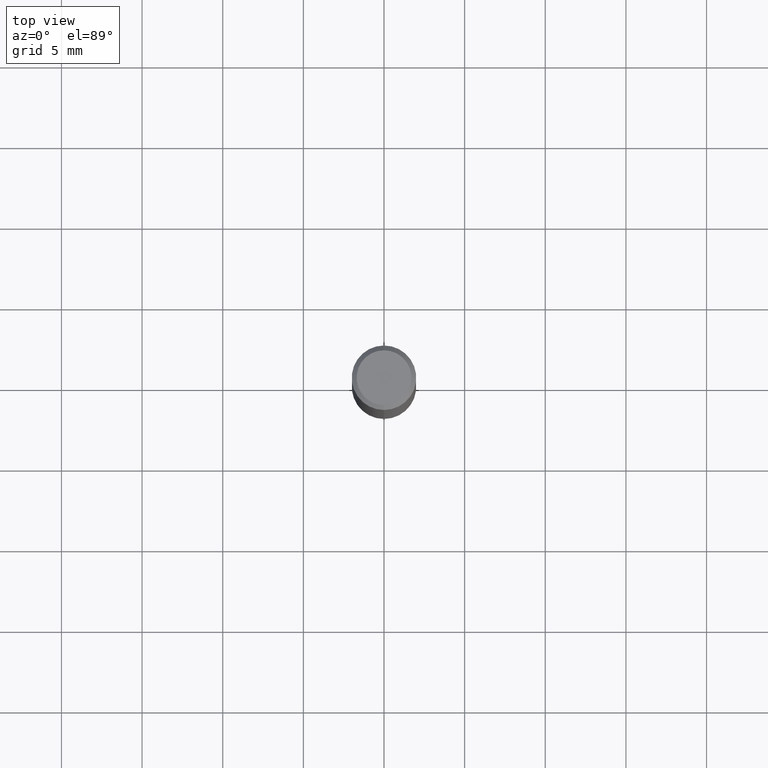
[diagram: clean part render]
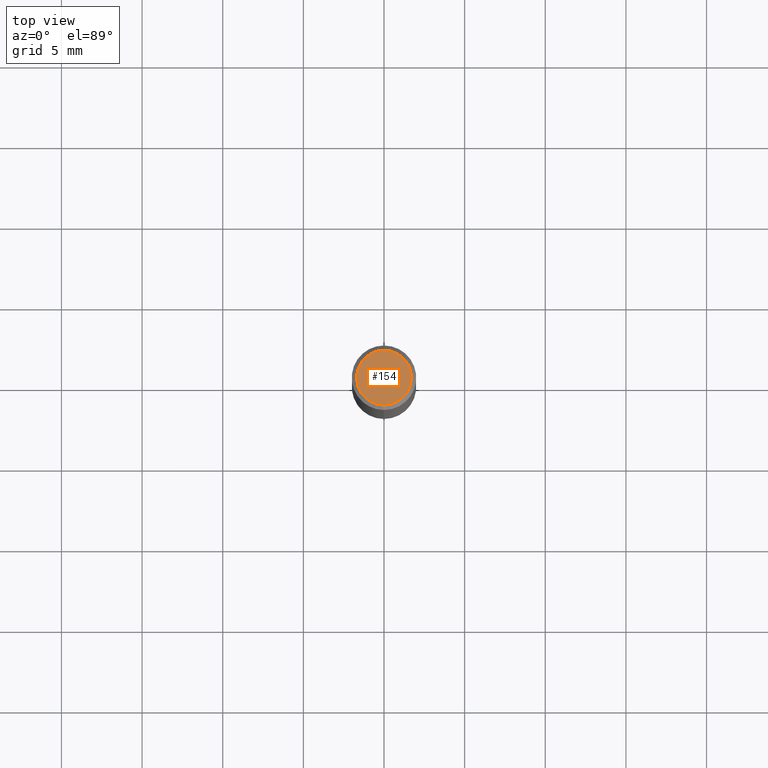
[diagram: same view with one face highlighted and labeled with its STEP entity id]
A machine part, top view. The second image highlights one B-rep face of the part: STEP entity #154.
In plain terms, the highlighted planar face has unit normal (-0, 0, 1).
Its self-contained STEP definition (entity closure, byte-faithful):
#98=EDGE_CURVE('',#208,#184,#240,.T.);
#142=EDGE_CURVE('',#184,#208,#292,.T.);
#154=ADVANCED_FACE('',(#305),#306,.T.);
#184=VERTEX_POINT('',#341);
#208=VERTEX_POINT('',#366);
#240=CIRCLE('',#392,1.7);
#292=CIRCLE('',#456,1.7);
#305=FACE_OUTER_BOUND('',#474,.T.);
#306=PLANE('',#475);
#341=CARTESIAN_POINT('',(2.08183080149804E-016,-1.7,0.0));
#366=CARTESIAN_POINT('',(0.0,1.7,0.0));
#392=AXIS2_PLACEMENT_3D('',#570,#571,#572);
#456=AXIS2_PLACEMENT_3D('',#652,#653,#654);
#474=EDGE_LOOP('',(#667,#668));
#475=AXIS2_PLACEMENT_3D('',#669,#670,#671);
#570=CARTESIAN_POINT('',(0.0,0.0,0.0));
#571=DIRECTION('',(0.0,0.0,-1.0));
#572=DIRECTION('',(0.0,1.0,0.0));
#652=CARTESIAN_POINT('',(0.0,0.0,0.0));
#653=DIRECTION('',(0.0,0.0,-1.0));
#654=DIRECTION('',(0.0,1.0,0.0));
#667=ORIENTED_EDGE('',*,*,#98,.F.);
#668=ORIENTED_EDGE('',*,*,#142,.F.);
#669=CARTESIAN_POINT('',(0.0,0.85,0.0));
#670=DIRECTION('',(-0.0,0.0,1.0));
#671=DIRECTION('',(0.0,-1.0,0.0));